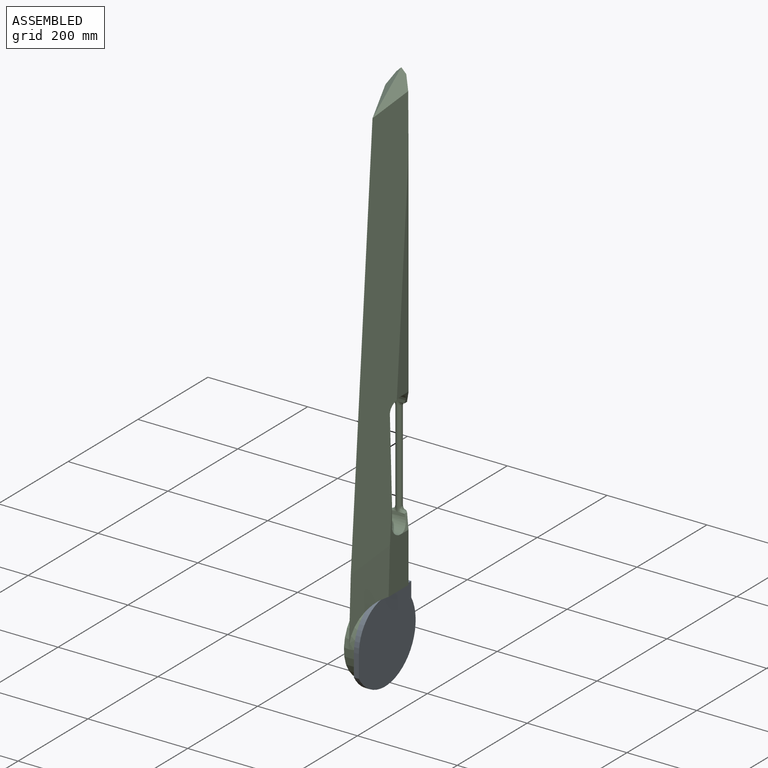
[diagram: assembled view]
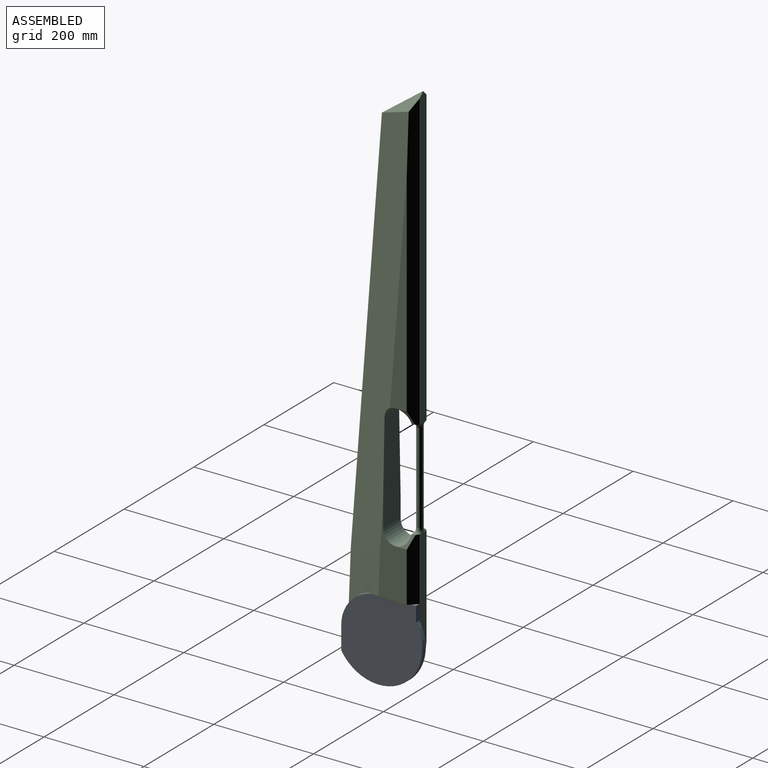
[diagram: assembled view, second angle]
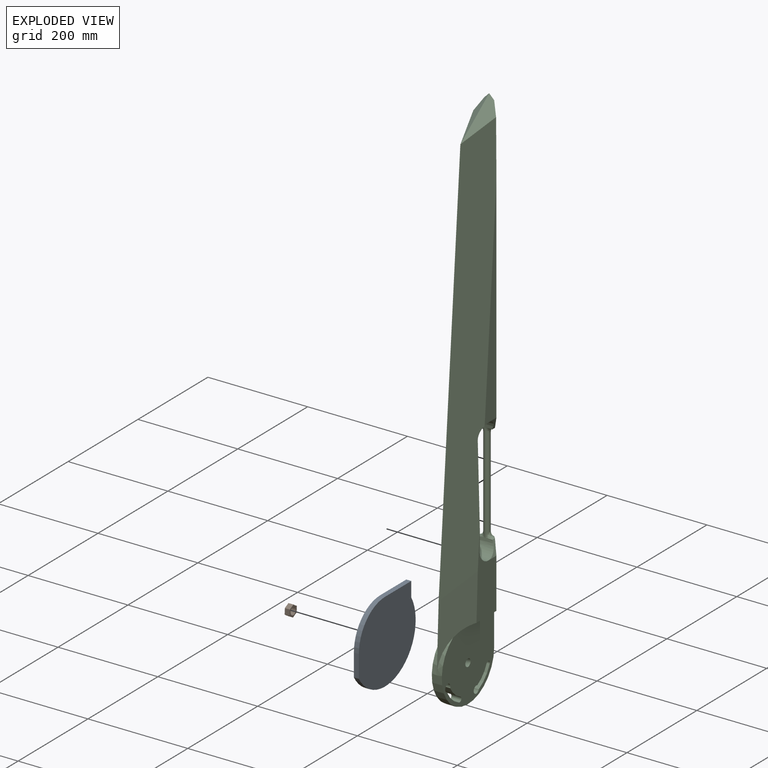
[diagram: exploded view]
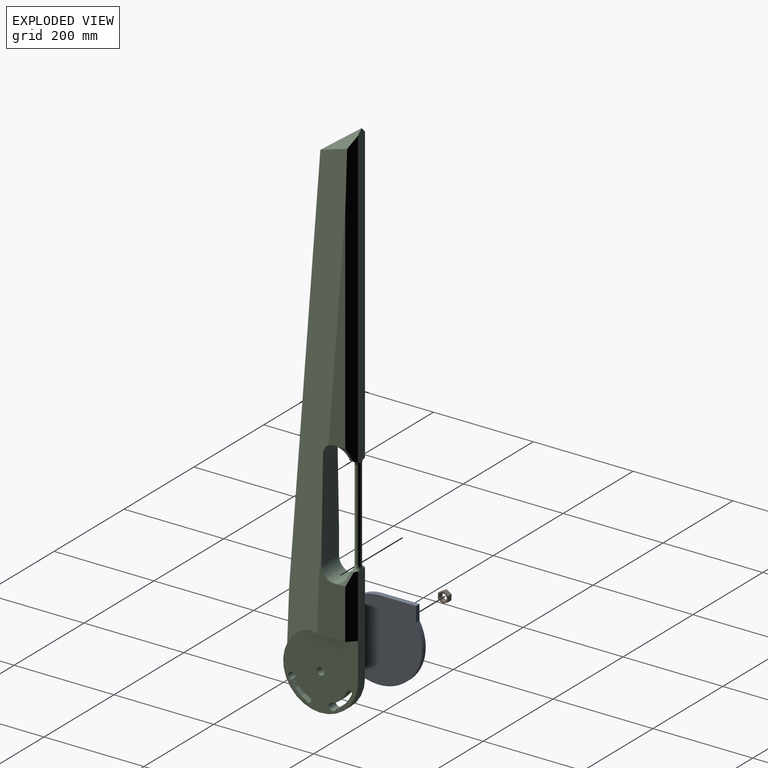
[diagram: exploded view, second angle]
ASSEMBLY  parts=3 mates=2
PART A: 20 faces, bbox 41x163x163 mm
  f0: cylinder r=7.5mm len=23mm, axis (1,0,0), area 1001.4mm2, adj f1,f11,f18,f19
  f1: cylinder r=7.5mm len=15mm, axis (1,0,0), area 47.1mm2, adj f0,f2,f19
  f2: cylinder r=7.5mm len=15mm, axis (1,0,0), area 47.1mm2, adj f1,f3,f19
  f3: cylinder r=7.5mm len=15mm, axis (1,0,0), area 47.1mm2, adj f2,f4,f19
  f4: cylinder r=7.5mm len=15mm, axis (1,0,0), area 38.3mm2, adj f3,f14,f17,f19
  f5: cylinder r=87.5mm len=162.5mm, axis (-1,0,0), area 2748.9mm2, adj f6,f9,f10,f11
  f6: plane 29.93x10mm, normal (0,1,0), area 299.3mm2, adj f5,f7,f10,f11
  f7: plane 75x10mm, normal (0,0,1), area 750mm2, adj f6,f8,f10,f11
  f8: cylinder r=75mm len=75mm, axis (-1,0,0), area 1178.1mm2, adj f7,f9,f10,f11
  f9: plane 45.07x10mm, normal (0,-1,0), area 450.7mm2, adj f5,f8,f10,f11
  f10: plane 162.5x162.5mm, normal (1,0,0), area 22069.3mm2, adj f5,f6,f7,f8,f9
  f11: plane 162.5x162.5mm, normal (-1,0,0), area 21735.5mm2, adj f0,f5,f6,f7,f8,f9,f12,f15
  f12: cylinder r=5mm len=30mm, axis (1,0,0), area 942.5mm2, adj f11,f13
  f13: plane 10x10mm, normal (-1,0,0), area 78.5mm2, adj f12
  f14: plane 15.51x15.5mm, normal (-1,0,0), area 172.2mm2, adj f4,f17,f19
  f15: cylinder r=5mm len=30mm, axis (1,0,0), area 942.5mm2, adj f11,f16
  f16: plane 10x10mm, normal (-1,0,0), area 78.5mm2, adj f15
  f17: plane 1.14x1.14mm, normal (0,0,1), area 0.6mm2, adj f4,f14,f19
  f18: plane 1.14x0.64mm, normal (0,0,-1), area 0.4mm2, adj f0,f19
  f19: bspline ~19.63x17mm, area 390mm2, adj f0,f1,f2,f3,f4,f14,f17,f18
PART B: 12 faces, bbox 11.5x20.5x23.6 mm
  f0: plane 23.55x20.45mm, normal (1,0,0), area 164.9mm2, adj f1,f2,f3,f4,f5,f6,f7,f9
  f1: plane 10x10mm, normal (0,0.5,0.87), area 115.5mm2, adj f0,f2,f7,f8
  f2: plane 11.55x10mm, normal (0,1,0), area 115.5mm2, adj f0,f1,f3,f8
  f3: plane 10x10mm, normal (0,0.5,-0.87), area 115.5mm2, adj f0,f2,f4,f8
  f4: plane 10x10mm, normal (0,-0.5,-0.87), area 115.5mm2, adj f0,f3,f5,f8
  f5: plane 11.55x10mm, normal (0,-1,0), area 115.5mm2, adj f0,f4,f7,f8
  f6: cylinder r=7.5mm len=15mm, axis (-1,0,0), area 240.4mm2, adj f0,f8,f9,f10,f11
  f7: plane 10x10mm, normal (0,-0.5,0.87), area 115.5mm2, adj f0,f1,f5,f8
  f8: plane 23.55x20.46mm, normal (-1,0,0), area 164.9mm2, adj f1,f2,f3,f4,f5,f6,f7,f10
  f9: plane 0.64x0.64mm, normal (0,0,1), area 0.2mm2, adj f0,f6,f10
  f10: bspline ~15.98x15.98mm, area 377.5mm2, adj f0,f6,f8,f9,f11
  f11: plane 0.64x0.64mm, normal (0,0,-1), area 0.2mm2, adj f6,f8,f10
PART C: 61 faces, bbox 54.7x156.1x1079.7 mm
  f0: bspline ~9.17x6.97mm, area 0mm2, adj f8,f44,f54
  f1: bspline ~9.17x6.97mm, area 0mm2, adj f19,f44,f56
  f2: bspline ~9.17x6.97mm, area 0mm2, adj f17,f44,f51
  f3: bspline ~9.17x6.97mm, area 0mm2, adj f16,f44,f53
  f4: bspline ~9.17x6.97mm, area 0mm2, adj f19,f44,f48
  f5: bspline ~9.17x6.97mm, area 0mm2, adj f8,f44,f50
  f6: bspline ~9.17x6.97mm, area 0mm2, adj f16,f44,f45
  f7: bspline ~9.17x6.97mm, area 0mm2, adj f17,f44,f47
  f8: plane 600.15x20.15mm, normal (0,1,0), area 11903.8mm2, adj f0,f5,f13,f26,f27,f50,f54,f57
  f9: cylinder r=75mm len=42.58mm, axis (-1,0,0), area 317.2mm2, adj f10,f22,f39
  f10: plane 75x15mm, normal (0,0,-1), area 1011mm2, adj f9,f11,f22,f39,f60
  f11: plane 167.77x57.02mm, normal (-1,0,0), area 5814.3mm2, adj f10,f17,f18,f22,f25,f42,f60
  f12: plane 433.64x33.59mm, normal (1,0,0), area 7204.5mm2, adj f19,f24,f43,f57
  f13: plane 0.56x0.37mm, normal (0,-0.38,0.92), area 0.1mm2, adj f8,f26,f27
  f14: cylinder r=75mm len=42.58mm, axis (-1,0,0), area 317.2mm2, adj f15,f23,f38
  f15: plane 75x15mm, normal (0,0,-1), area 1011mm2, adj f14,f20,f23,f38,f59
  f16: plane 200.15x20.15mm, normal (0,1,0), area 4000mm2, adj f3,f6,f34,f38,f39,f45,f53,f59
  f17: cylinder r=25mm len=50mm, axis (-1,0,0), area 3534.3mm2, adj f2,f7,f11,f18,f20,f41,f42,f47
  f18: plane 200x50mm, normal (0,1,0), area 9352mm2, adj f11,f17,f19,f20,f24,f25
  f19: cylinder r=25mm len=50mm, axis (-1,0,0), area 3419.8mm2, adj f1,f4,f12,f18,f21,f24,f25,f40
  f20: plane 167.77x57.02mm, normal (1,0,0), area 5814.3mm2, adj f15,f17,f18,f23,f24,f41,f59
  f21: plane 433.64x33.59mm, normal (-1,0,0), area 7204.5mm2, adj f19,f25,f40,f58
  f22: plane 168.79x86.3mm, normal (-0.95,-0.32,0.01), area 7191.5mm2, adj f9,f10,f11,f23,f25,f34
  f23: plane 168.79x86.3mm, normal (0.95,-0.32,0.01), area 7191.5mm2, adj f14,f15,f20,f22,f24,f34
  f24: plane 834.75x134.14mm, normal (0.95,-0.32,0.02), area 61071.5mm2, adj f12,f18,f19,f20,f23,f25,f26,f57
  f25: plane 834.75x134.14mm, normal (-0.95,-0.32,0.02), area 61071.5mm2, adj f11,f18,f19,f21,f22,f24,f27,f58
  f26: plane 82.43x60.92mm, normal (0.63,-0.46,0.63), area 1602.1mm2, adj f8,f13,f24,f27,f57
  f27: plane 82.43x60.92mm, normal (-0.63,-0.46,0.63), area 1602.1mm2, adj f8,f13,f25,f26,f58
  f28: cylinder r=7.5mm len=20mm, axis (-1,0,0), area 723.3mm2, adj f29,f35,f38,f39
  f29: cylinder r=57.5mm len=28.84mm, axis (-1,0,0), area 795.9mm2, adj f28,f30,f38,f39
  f30: cylinder r=5mm len=20mm, axis (-1,0,0), area 314.2mm2, adj f29,f35,f38,f39
  f31: cylinder r=5mm len=20mm, axis (-1,0,0), area 314.2mm2, adj f32,f36,f38,f39
  f32: cylinder r=67.5mm len=34.08mm, axis (-1,0,0), area 944.1mm2, adj f31,f33,f38,f39
  f33: cylinder r=7.5mm len=20mm, axis (-1,0,0), area 723.3mm2, adj f32,f36,f38,f39
  f34: cylinder r=75mm len=150mm, axis (-1,0,0), area 5467.4mm2, adj f16,f22,f23,f38,f39
  f35: cylinder r=67.5mm len=34.08mm, axis (-1,0,0), area 944.1mm2, adj f28,f30,f38,f39
  f36: cylinder r=57.5mm len=28.84mm, axis (-1,0,0), area 795.9mm2, adj f31,f33,f38,f39
  f37: cylinder r=7.5mm len=20mm, axis (-1,0,0), area 942.5mm2, adj f38,f39
  f38: plane 150x150mm, normal (1,0,0), area 17426.2mm2, adj f14,f15,f16,f28,f29,f30,f31,f32
  f39: plane 150x150mm, normal (-1,0,0), area 17426.2mm2, adj f9,f10,f16,f28,f29,f30,f31,f32
  f40: plane 36.71x29.21mm, normal (-0.93,0,-0.37), area 211.8mm2, adj f19,f21,f49,f58
  f41: plane 36.71x29.21mm, normal (0.93,0,0.37), area 211.8mm2, adj f17,f20,f52,f59
  f42: plane 36.71x29.21mm, normal (-0.93,0,0.37), area 211.8mm2, adj f11,f17,f46,f60
  f43: plane 36.71x29.21mm, normal (0.93,0,-0.37), area 211.8mm2, adj f12,f19,f55,f57
  f44: cylinder r=6.25mm len=200mm, axis (0,0,1), area 7310.3mm2, adj f0,f1,f2,f3,f4,f5,f6,f7
  f45: bspline ~11.87x10mm, area 37.6mm2, adj f6,f16,f44,f46,f60
  f46: bspline ~14.76x10.6mm, area 104mm2, adj f42,f44,f45,f47,f60
  f47: bspline ~11.87x10mm, area 41.9mm2, adj f7,f17,f44,f46
  f48: bspline ~11.87x10mm, area 41.9mm2, adj f4,f19,f44,f49
  f49: bspline ~14.76x10.6mm, area 104mm2, adj f40,f44,f48,f50,f58
  f50: bspline ~11.87x10mm, area 37.6mm2, adj f5,f8,f44,f49,f58
  f51: bspline ~11.87x10mm, area 41.9mm2, adj f2,f17,f44,f52
  f52: bspline ~14.76x10.6mm, area 104mm2, adj f41,f44,f51,f53,f59
  f53: bspline ~11.87x10mm, area 37.6mm2, adj f3,f16,f44,f52,f59
  f54: bspline ~11.87x10mm, area 37.6mm2, adj f0,f8,f44,f55,f57
  f55: bspline ~14.76x10.6mm, area 104mm2, adj f43,f44,f54,f56,f57
  f56: bspline ~11.87x10mm, area 41.9mm2, adj f1,f19,f44,f55
  f57: plane 591.67x15.7mm, normal (0.71,0.71,0), area 11901.9mm2, adj f8,f12,f24,f26,f43,f54,f55
  f58: plane 591.67x15.69mm, normal (-0.71,0.71,0), area 11901.9mm2, adj f8,f21,f25,f27,f40,f49,f50
  f59: plane 126.47x15.69mm, normal (0.71,0.71,0), area 2477.7mm2, adj f15,f16,f20,f41,f52,f53
  f60: plane 126.47x15.7mm, normal (-0.71,0.71,0), area 2477.7mm2, adj f10,f11,f16,f42,f45,f46
PLACE A rot(axis=(-1,0,0),0deg) t=(-262.28,-46.21,166.49)mm
PLACE B rot(axis=(-1,0,0),3.2deg) t=(-262.26,-46.21,166.49)mm
PLACE C t=(-272.28,-46.21,166.49)mm fixed
MATE revolute A.f8 <-> C.f37  axis (-1,0,0) through (-262.28,-46.21,166.49)mm
MATE cylindrical B.f6 <-> A.f0  axis (-1,0,0) through (-292.26,-46.21,166.49)mm
